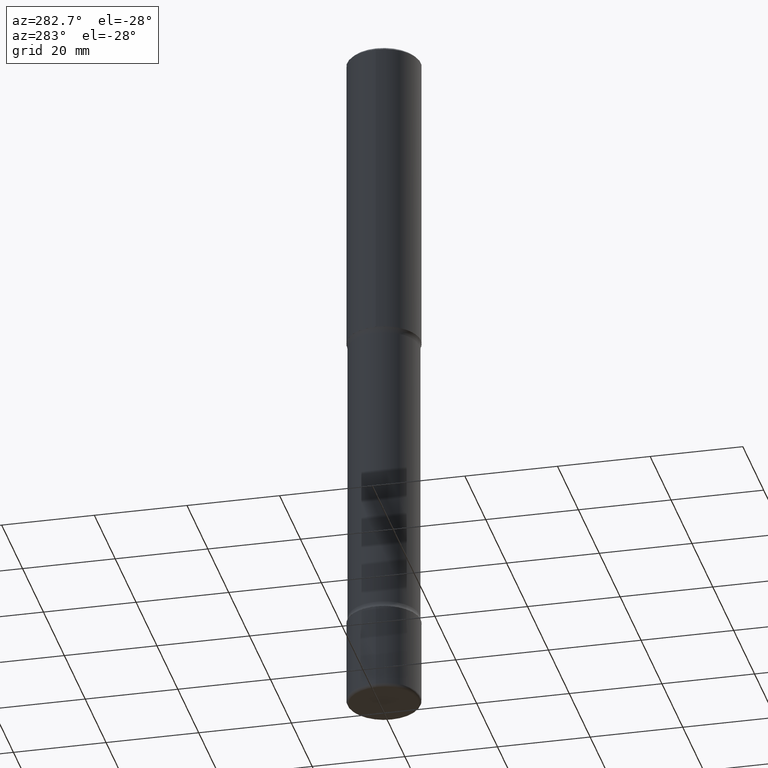
[diagram: clean part render]
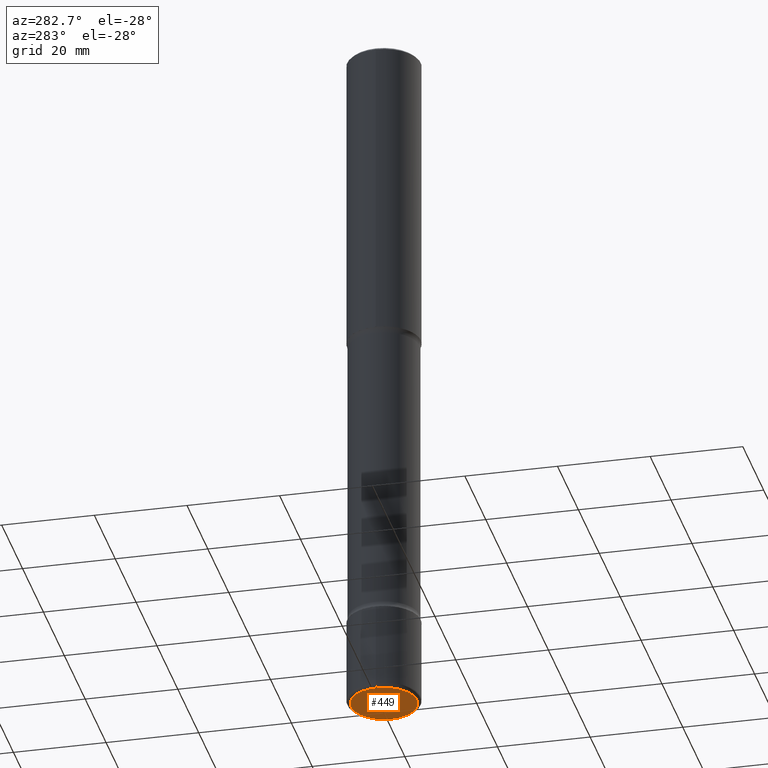
[diagram: same view with one face highlighted and labeled with its STEP entity id]
A machine part, auxiliary view. The second image highlights one B-rep face of the part: STEP entity #449.
In plain terms, the highlighted planar face has unit normal (0, -0, -1).
Its self-contained STEP definition (entity closure, byte-faithful):
#9 = CIRCLE ( 'NONE', #527, 0.2825000000000000844 ) ;
#20 = VERTEX_POINT ( 'NONE', #343 ) ;
#73 = PLANE ( 'NONE',  #456 ) ;
#81 = DIRECTION ( 'NONE',  ( -2.445468806185136597E-29, 3.491481338843145583E-15, 1.000000000000000000 ) ) ;
#150 = ORIENTED_EDGE ( 'NONE', *, *, #255, .F. ) ;
#202 = DIRECTION ( 'NONE',  ( -1.000000000000000000, 6.982962677686265922E-15, -4.876176775795935793E-29 ) ) ;
#211 = EDGE_CURVE ( 'NONE', #540, #20, #322, .T. ) ;
#213 = CARTESIAN_POINT ( 'NONE',  ( 1.467281283711081958E-28, -2.094888803305887271E-14, -6.000000000000000888 ) ) ;
#245 = CARTESIAN_POINT ( 'NONE',  ( 1.467281283711081958E-28, -2.094888803305887271E-14, -6.000000000000000888 ) ) ;
#255 = EDGE_CURVE ( 'NONE', #20, #540, #9, .T. ) ;
#256 = CARTESIAN_POINT ( 'NONE',  ( -0.2825000000000000844, -1.878265117408992254E-14, -6.000000000000000888 ) ) ;
#309 = DIRECTION ( 'NONE',  ( 1.000000000000000000, -6.982962677686274599E-15, 0.000000000000000000 ) ) ;
#319 = CARTESIAN_POINT ( 'NONE',  ( 1.467281283711081958E-28, -2.094888803305887271E-14, -6.000000000000000888 ) ) ;
#322 = CIRCLE ( 'NONE', #361, 0.2825000000000000844 ) ;
#343 = CARTESIAN_POINT ( 'NONE',  ( 0.2825000000000000844, -2.292157498950524589E-14, -6.000000000000000888 ) ) ;
#347 = ORIENTED_EDGE ( 'NONE', *, *, #211, .F. ) ;
#350 = DIRECTION ( 'NONE',  ( 1.000000000000000000, -6.982962677686274599E-15, 0.000000000000000000 ) ) ;
#353 = DIRECTION ( 'NONE',  ( -2.445468806185136597E-29, 3.491481338843145583E-15, 1.000000000000000000 ) ) ;
#361 = AXIS2_PLACEMENT_3D ( 'NONE', #319, #353, #309 ) ;
#398 = EDGE_LOOP ( 'NONE', ( #150, #347 ) ) ;
#449 = ADVANCED_FACE ( 'NONE', ( #458 ), #73, .T. ) ;
#456 = AXIS2_PLACEMENT_3D ( 'NONE', #245, #535, #202 ) ;
#458 = FACE_OUTER_BOUND ( 'NONE', #398, .T. ) ;
#527 = AXIS2_PLACEMENT_3D ( 'NONE', #213, #81, #350 ) ;
#535 = DIRECTION ( 'NONE',  ( 2.438088387897960049E-29, -3.491481338843145188E-15, -1.000000000000000000 ) ) ;
#540 = VERTEX_POINT ( 'NONE', #256 ) ;